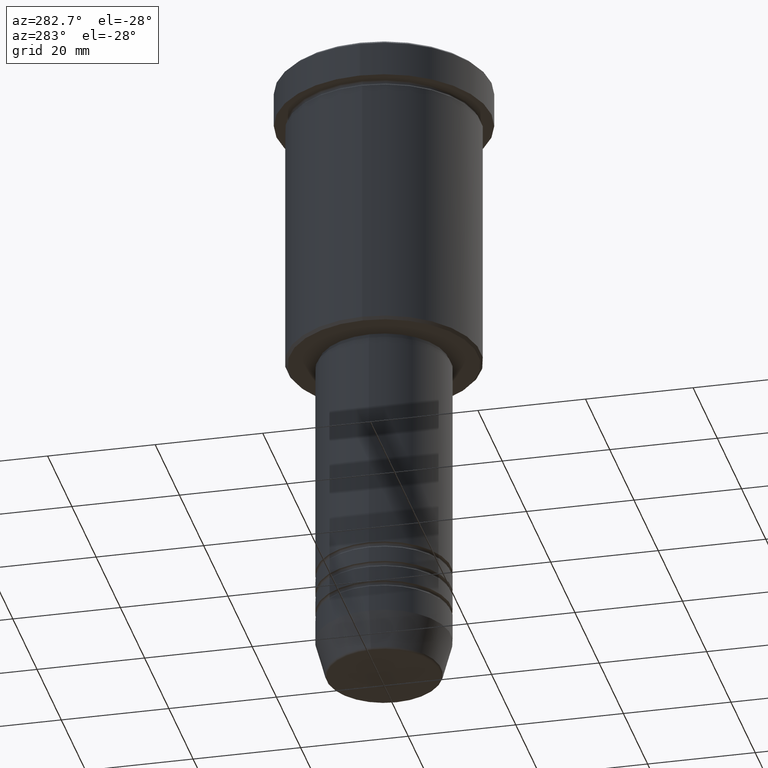
[diagram: clean part render]
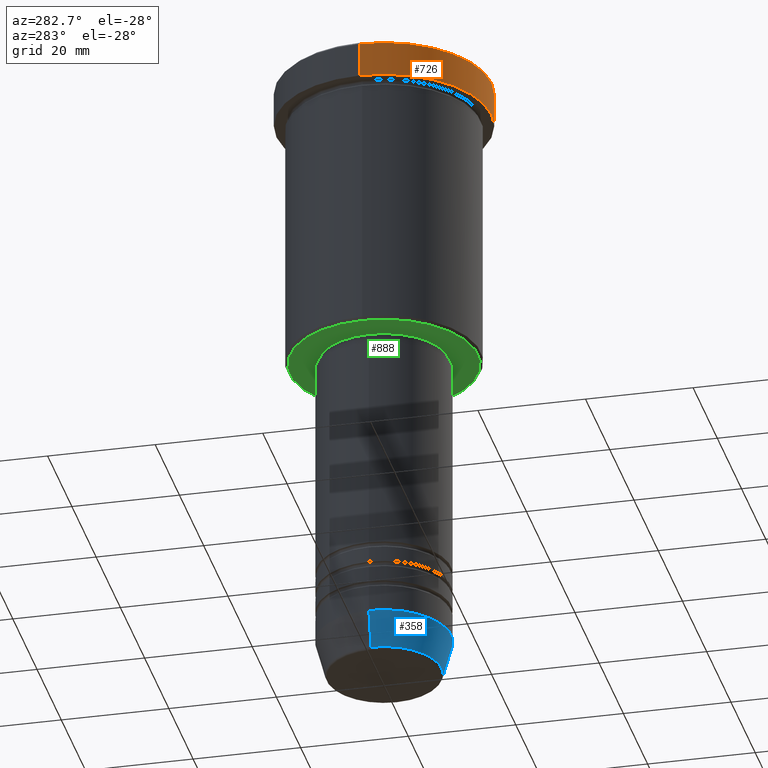
[diagram: same view with three faces highlighted in distinct colors, each labeled with its STEP entity id]
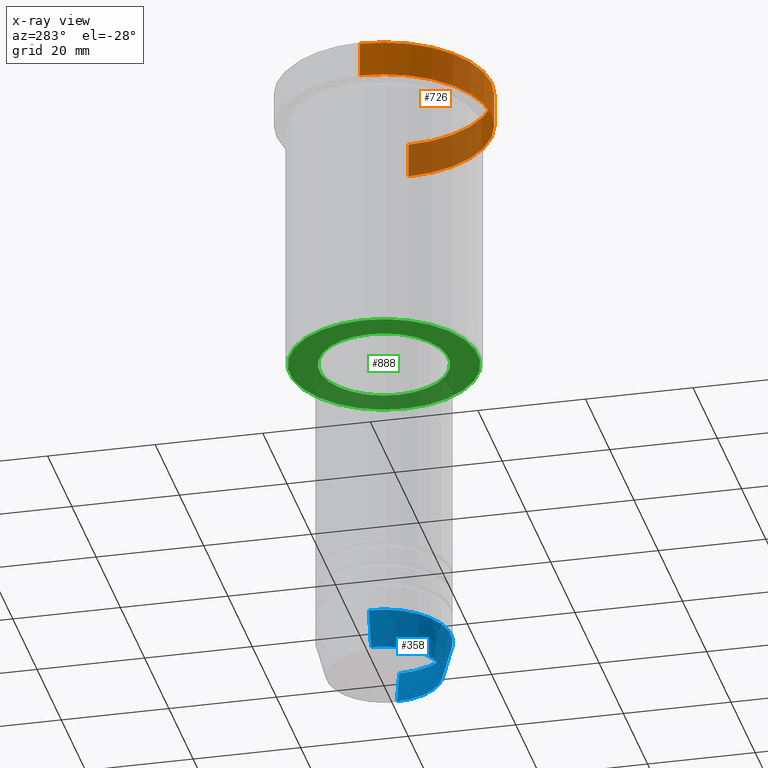
[diagram: x-ray of the same camera — body ghosted, the three highlighted faces saturated]
A machine part, auxiliary view with three faces highlighted in distinct colors.
The next image is the same camera in x-ray (body ghosted, the three faces saturated) — at least one of them is partly hidden behind the body in this view.
Their STEP definitions:

[orange] entity #726 — the highlighted cylindrical surface (partial cylindrical patch) has radius 20 mm, axis along (-0, -0, 1).
#37 = LINE ( 'NONE', #742, #573 ) ;
#56 = CARTESIAN_POINT ( 'NONE',  ( -20.00000000000000000, 2.449293598294706513E-15, -6.999999999999995559 ) ) ;
#80 = AXIS2_PLACEMENT_3D ( 'NONE', #677, #878, #241 ) ;
#83 = VERTEX_POINT ( 'NONE', #56 ) ;
#171 = VERTEX_POINT ( 'NONE', #790 ) ;
#241 = DIRECTION ( 'NONE',  ( 1.000000000000000000, 0.000000000000000000, 0.000000000000000000 ) ) ;
#268 = ORIENTED_EDGE ( 'NONE', *, *, #974, .T. ) ;
#296 = AXIS2_PLACEMENT_3D ( 'NONE', #501, #775, #667 ) ;
#313 = CIRCLE ( 'NONE', #1029, 20.00000000000000000 ) ;
#342 = LINE ( 'NONE', #425, #629 ) ;
#371 = CARTESIAN_POINT ( 'NONE',  ( 20.00000000000000000, 0.000000000000000000, -6.999999999999995559 ) ) ;
#385 = DIRECTION ( 'NONE',  ( -0.000000000000000000, -0.000000000000000000, 1.000000000000000000 ) ) ;
#419 = CYLINDRICAL_SURFACE ( 'NONE', #296, 20.00000000000000000 ) ;
#425 = CARTESIAN_POINT ( 'NONE',  ( -20.00000000000000000, 2.449293598294706513E-15, 0.000000000000000000 ) ) ;
#444 = VERTEX_POINT ( 'NONE', #626 ) ;
#501 = CARTESIAN_POINT ( 'NONE',  ( 0.000000000000000000, 0.000000000000000000, 0.000000000000000000 ) ) ;
#511 = FACE_OUTER_BOUND ( 'NONE', #851, .T. ) ;
#573 = VECTOR ( 'NONE', #385, 1000.000000000000000 ) ;
#578 = EDGE_CURVE ( 'NONE', #171, #444, #313, .T. ) ;
#626 = CARTESIAN_POINT ( 'NONE',  ( -20.00000000000000000, 2.449293598294706513E-15, -0.5000000000000108802 ) ) ;
#629 = VECTOR ( 'NONE', #976, 1000.000000000000000 ) ;
#667 = DIRECTION ( 'NONE',  ( 1.000000000000000000, 0.000000000000000000, 0.000000000000000000 ) ) ;
#677 = CARTESIAN_POINT ( 'NONE',  ( 0.000000000000000000, 0.000000000000000000, -6.999999999999995559 ) ) ;
#726 = ADVANCED_FACE ( 'NONE', ( #511 ), #419, .T. ) ;
#735 = EDGE_CURVE ( 'NONE', #83, #444, #342, .T. ) ;
#742 = CARTESIAN_POINT ( 'NONE',  ( 20.00000000000000000, 0.000000000000000000, 0.000000000000000000 ) ) ;
#744 = DIRECTION ( 'NONE',  ( 0.000000000000000000, 0.000000000000000000, -1.000000000000000000 ) ) ;
#746 = EDGE_CURVE ( 'NONE', #83, #1121, #847, .T. ) ;
#775 = DIRECTION ( 'NONE',  ( -0.000000000000000000, -0.000000000000000000, 1.000000000000000000 ) ) ;
#790 = CARTESIAN_POINT ( 'NONE',  ( 20.00000000000000000, 0.000000000000000000, -0.5000000000000108802 ) ) ;
#825 = ORIENTED_EDGE ( 'NONE', *, *, #746, .T. ) ;
#847 = CIRCLE ( 'NONE', #80, 20.00000000000000000 ) ;
#851 = EDGE_LOOP ( 'NONE', ( #1183, #825, #268, #1074 ) ) ;
#878 = DIRECTION ( 'NONE',  ( -0.000000000000000000, -0.000000000000000000, 1.000000000000000000 ) ) ;
#974 = EDGE_CURVE ( 'NONE', #1121, #171, #37, .T. ) ;
#976 = DIRECTION ( 'NONE',  ( -0.000000000000000000, -0.000000000000000000, 1.000000000000000000 ) ) ;
#1020 = CARTESIAN_POINT ( 'NONE',  ( 0.000000000000000000, 0.000000000000000000, -0.5000000000000108802 ) ) ;
#1029 = AXIS2_PLACEMENT_3D ( 'NONE', #1020, #744, #1130 ) ;
#1074 = ORIENTED_EDGE ( 'NONE', *, *, #578, .T. ) ;
#1121 = VERTEX_POINT ( 'NONE', #371 ) ;
#1130 = DIRECTION ( 'NONE',  ( 1.000000000000000000, 0.000000000000000000, 0.000000000000000000 ) ) ;
#1183 = ORIENTED_EDGE ( 'NONE', *, *, #735, .F. ) ;

[blue] entity #358 — the highlighted conical surface has half-angle 15 deg.
#2 = CIRCLE ( 'NONE', #464, 10.72365507213718416 ) ;
#20 = VECTOR ( 'NONE', #119, 1000.000000000000000 ) ;
#101 = EDGE_LOOP ( 'NONE', ( #259, #722, #205, #517 ) ) ;
#119 = DIRECTION ( 'NONE',  ( -0.2588190451025213501, 3.169619151431772337E-17, 0.9659258262890680902 ) ) ;
#126 = LINE ( 'NONE', #397, #20 ) ;
#155 = VERTEX_POINT ( 'NONE', #989 ) ;
#178 = AXIS2_PLACEMENT_3D ( 'NONE', #1151, #1140, #874 ) ;
#203 = CARTESIAN_POINT ( 'NONE',  ( 12.50000000000000000, 0.000000000000000000, -112.9999999999999858 ) ) ;
#205 = ORIENTED_EDGE ( 'NONE', *, *, #290, .T. ) ;
#234 = AXIS2_PLACEMENT_3D ( 'NONE', #310, #302, #1038 ) ;
#235 = VERTEX_POINT ( 'NONE', #615 ) ;
#259 = ORIENTED_EDGE ( 'NONE', *, *, #1104, .F. ) ;
#262 = CARTESIAN_POINT ( 'NONE',  ( 12.50000000000000000, 0.000000000000000000, -112.9999999999999858 ) ) ;
#263 = EDGE_CURVE ( 'NONE', #235, #719, #2, .T. ) ;
#269 = DIRECTION ( 'NONE',  ( 0.2588190451025213501, 0.000000000000000000, 0.9659258262890680902 ) ) ;
#290 = EDGE_CURVE ( 'NONE', #719, #619, #627, .T. ) ;
#302 = DIRECTION ( 'NONE',  ( -0.000000000000000000, -0.000000000000000000, 1.000000000000000000 ) ) ;
#310 = CARTESIAN_POINT ( 'NONE',  ( 0.000000000000000000, 0.000000000000000000, -112.9999999999999858 ) ) ;
#358 = ADVANCED_FACE ( 'NONE', ( #1160 ), #868, .T. ) ;
#397 = CARTESIAN_POINT ( 'NONE',  ( -12.50000000000000000, 1.530808498934191521E-15, -112.9999999999999858 ) ) ;
#440 = DIRECTION ( 'NONE',  ( -0.000000000000000000, -0.000000000000000000, 1.000000000000000000 ) ) ;
#464 = AXIS2_PLACEMENT_3D ( 'NONE', #794, #440, #806 ) ;
#517 = ORIENTED_EDGE ( 'NONE', *, *, #602, .F. ) ;
#589 = CARTESIAN_POINT ( 'NONE',  ( 10.72365507213718416, 0.000000000000000000, -119.6294095225512564 ) ) ;
#602 = EDGE_CURVE ( 'NONE', #155, #619, #728, .T. ) ;
#615 = CARTESIAN_POINT ( 'NONE',  ( -10.72365507213718416, 1.422038742429749727E-15, -119.6294095225512564 ) ) ;
#619 = VERTEX_POINT ( 'NONE', #203 ) ;
#627 = LINE ( 'NONE', #262, #710 ) ;
#710 = VECTOR ( 'NONE', #269, 1000.000000000000000 ) ;
#719 = VERTEX_POINT ( 'NONE', #589 ) ;
#722 = ORIENTED_EDGE ( 'NONE', *, *, #263, .T. ) ;
#728 = CIRCLE ( 'NONE', #234, 12.50000000000000000 ) ;
#794 = CARTESIAN_POINT ( 'NONE',  ( 0.000000000000000000, 0.000000000000000000, -119.6294095225512564 ) ) ;
#806 = DIRECTION ( 'NONE',  ( 1.000000000000000000, 0.000000000000000000, 0.000000000000000000 ) ) ;
#868 = CONICAL_SURFACE ( 'NONE', #178, 12.50000000000000000, 0.2617993877991500740 ) ;
#874 = DIRECTION ( 'NONE',  ( 1.000000000000000000, 0.000000000000000000, 0.000000000000000000 ) ) ;
#989 = CARTESIAN_POINT ( 'NONE',  ( -12.50000000000000000, 1.530808498934191521E-15, -112.9999999999999858 ) ) ;
#1038 = DIRECTION ( 'NONE',  ( 1.000000000000000000, 0.000000000000000000, 0.000000000000000000 ) ) ;
#1104 = EDGE_CURVE ( 'NONE', #235, #155, #126, .T. ) ;
#1140 = DIRECTION ( 'NONE',  ( -0.000000000000000000, -0.000000000000000000, 1.000000000000000000 ) ) ;
#1151 = CARTESIAN_POINT ( 'NONE',  ( 0.000000000000000000, 0.000000000000000000, -112.9999999999999858 ) ) ;
#1160 = FACE_OUTER_BOUND ( 'NONE', #101, .T. ) ;

[green] entity #888 — the highlighted planar face has unit normal (0, 0, -1).
#9 = EDGE_CURVE ( 'NONE', #1098, #336, #18, .T. ) ;
#12 = EDGE_LOOP ( 'NONE', ( #1001, #574 ) ) ;
#18 = CIRCLE ( 'NONE', #111, 17.49999999999996092 ) ;
#25 = EDGE_CURVE ( 'NONE', #303, #509, #311, .T. ) ;
#31 = DIRECTION ( 'NONE',  ( 0.000000000000000000, 0.000000000000000000, -1.000000000000000000 ) ) ;
#90 = CARTESIAN_POINT ( 'NONE',  ( -12.00000000000000000, 1.469576158976823947E-15, -56.00000000000000711 ) ) ;
#111 = AXIS2_PLACEMENT_3D ( 'NONE', #484, #31, #937 ) ;
#133 = CARTESIAN_POINT ( 'NONE',  ( -17.49999999999996092, 2.173748068486549274E-15, -56.00000000000000711 ) ) ;
#145 = DIRECTION ( 'NONE',  ( -1.000000000000000000, 0.000000000000000000, -0.000000000000000000 ) ) ;
#184 = ORIENTED_EDGE ( 'NONE', *, *, #676, .T. ) ;
#217 = EDGE_LOOP ( 'NONE', ( #861, #184 ) ) ;
#230 = CARTESIAN_POINT ( 'NONE',  ( 17.49999999999996092, 0.000000000000000000, -56.00000000000000711 ) ) ;
#303 = VERTEX_POINT ( 'NONE', #880 ) ;
#311 = CIRCLE ( 'NONE', #762, 12.00000000000000000 ) ;
#316 = DIRECTION ( 'NONE',  ( -0.000000000000000000, -0.000000000000000000, 1.000000000000000000 ) ) ;
#336 = VERTEX_POINT ( 'NONE', #230 ) ;
#407 = DIRECTION ( 'NONE',  ( -1.000000000000000000, 0.000000000000000000, 0.000000000000000000 ) ) ;
#484 = CARTESIAN_POINT ( 'NONE',  ( 0.000000000000000000, 0.000000000000000000, -56.00000000000000711 ) ) ;
#509 = VERTEX_POINT ( 'NONE', #90 ) ;
#574 = ORIENTED_EDGE ( 'NONE', *, *, #9, .T. ) ;
#585 = DIRECTION ( 'NONE',  ( 1.000000000000000000, 0.000000000000000000, 0.000000000000000000 ) ) ;
#593 = CARTESIAN_POINT ( 'NONE',  ( 0.000000000000000000, 18.00000000000000000, -56.00000000000000711 ) ) ;
#676 = EDGE_CURVE ( 'NONE', #509, #303, #788, .T. ) ;
#738 = DIRECTION ( 'NONE',  ( -0.000000000000000000, -0.000000000000000000, 1.000000000000000000 ) ) ;
#752 = FACE_OUTER_BOUND ( 'NONE', #12, .T. ) ;
#762 = AXIS2_PLACEMENT_3D ( 'NONE', #1128, #316, #585 ) ;
#788 = CIRCLE ( 'NONE', #948, 12.00000000000000000 ) ;
#833 = CARTESIAN_POINT ( 'NONE',  ( 0.000000000000000000, 0.000000000000000000, -56.00000000000000711 ) ) ;
#861 = ORIENTED_EDGE ( 'NONE', *, *, #25, .T. ) ;
#865 = AXIS2_PLACEMENT_3D ( 'NONE', #1123, #916, #407 ) ;
#869 = CIRCLE ( 'NONE', #865, 17.49999999999996092 ) ;
#880 = CARTESIAN_POINT ( 'NONE',  ( 12.00000000000000000, 0.000000000000000000, -56.00000000000000711 ) ) ;
#888 = ADVANCED_FACE ( 'NONE', ( #752, #1134 ), #1042, .T. ) ;
#916 = DIRECTION ( 'NONE',  ( 0.000000000000000000, 0.000000000000000000, -1.000000000000000000 ) ) ;
#937 = DIRECTION ( 'NONE',  ( -1.000000000000000000, 0.000000000000000000, 0.000000000000000000 ) ) ;
#948 = AXIS2_PLACEMENT_3D ( 'NONE', #833, #738, #1124 ) ;
#950 = DIRECTION ( 'NONE',  ( 0.000000000000000000, 0.000000000000000000, -1.000000000000000000 ) ) ;
#983 = EDGE_CURVE ( 'NONE', #336, #1098, #869, .T. ) ;
#1001 = ORIENTED_EDGE ( 'NONE', *, *, #983, .T. ) ;
#1042 = PLANE ( 'NONE',  #1070 ) ;
#1070 = AXIS2_PLACEMENT_3D ( 'NONE', #593, #950, #145 ) ;
#1098 = VERTEX_POINT ( 'NONE', #133 ) ;
#1123 = CARTESIAN_POINT ( 'NONE',  ( 0.000000000000000000, 0.000000000000000000, -56.00000000000000711 ) ) ;
#1124 = DIRECTION ( 'NONE',  ( 1.000000000000000000, 0.000000000000000000, 0.000000000000000000 ) ) ;
#1128 = CARTESIAN_POINT ( 'NONE',  ( 0.000000000000000000, 0.000000000000000000, -56.00000000000000711 ) ) ;
#1134 = FACE_BOUND ( 'NONE', #217, .T. ) ;